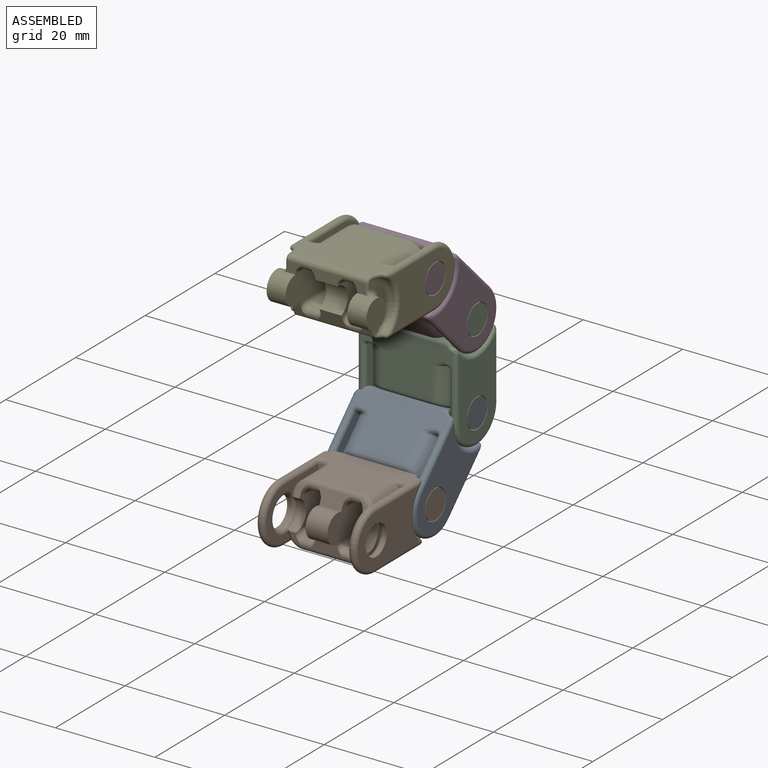
[diagram: assembled view]
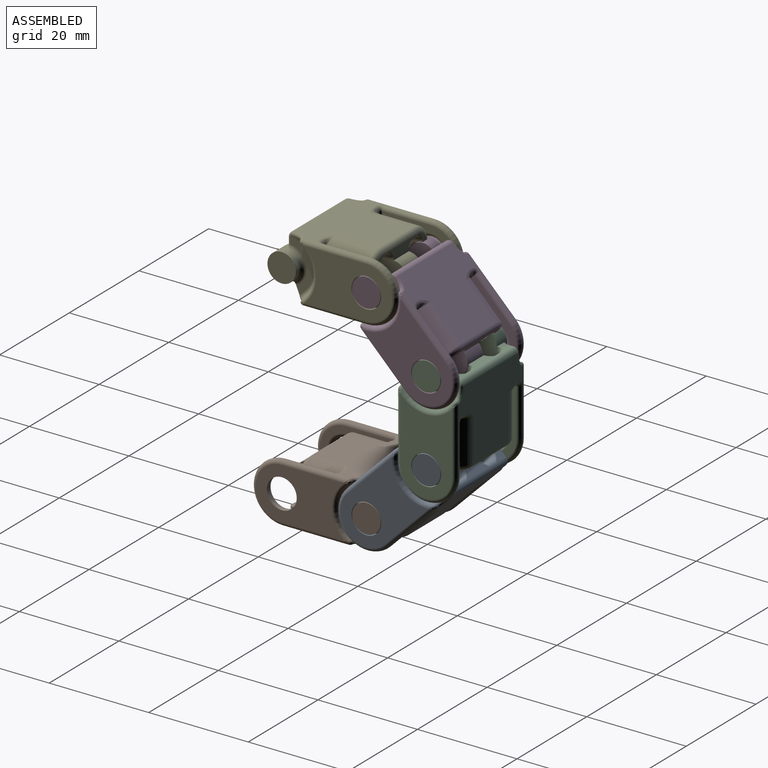
[diagram: assembled view, second angle]
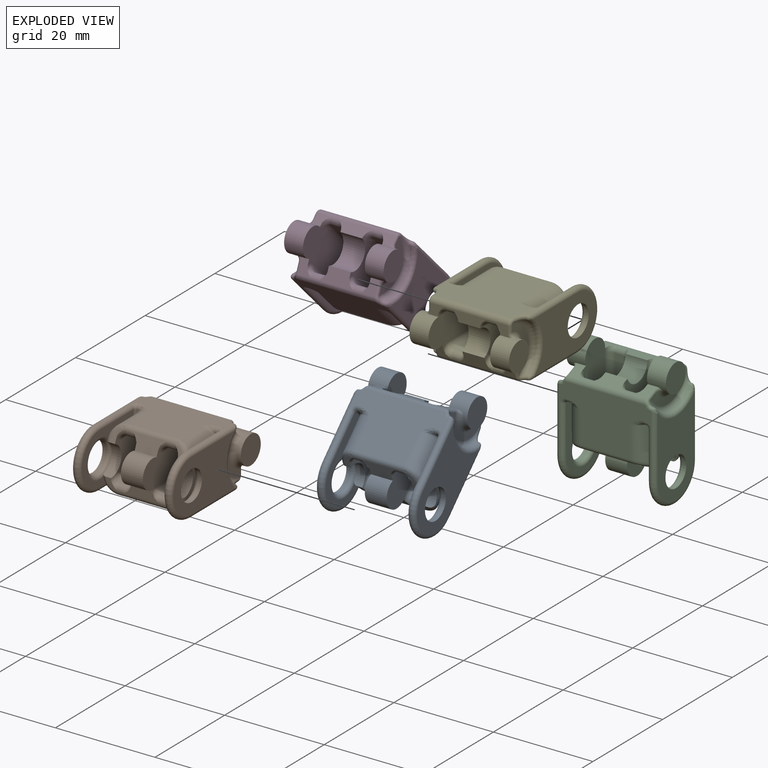
[diagram: exploded view]
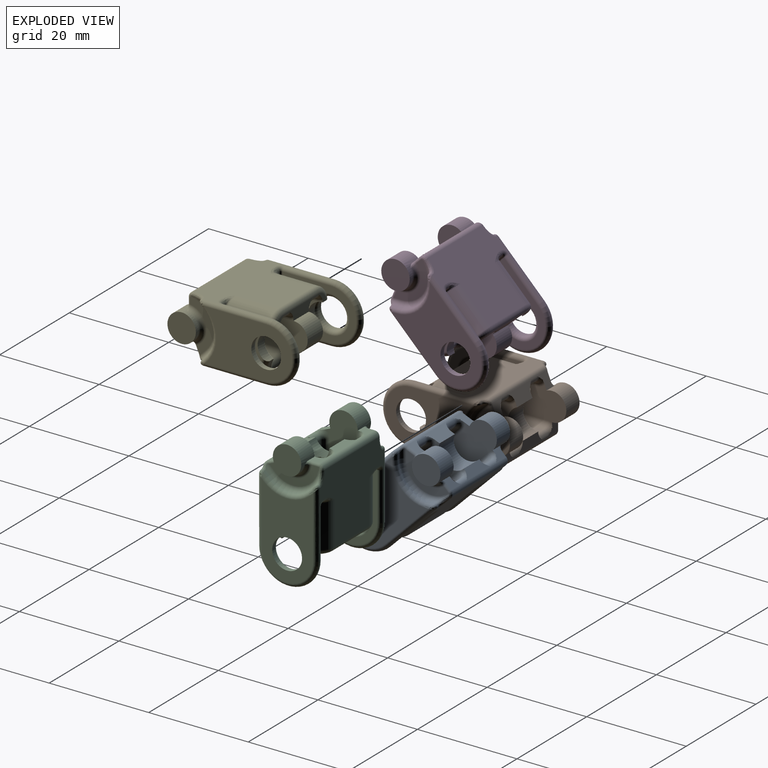
[diagram: exploded view, second angle]
ASSEMBLY  parts=5 mates=4
PART A: 156 faces, bbox 21.1x27x14.7 mm
  f0: plane 0.41x0.32mm, normal (0,-1,0), area 0.1mm2, adj f66,f67,f81
  f1: plane 7.26x3.08mm, normal (0,0.92,0.38), area 14mm2, adj f10,f27,f30,f47,f91,f119
  f2: plane 3.54x2.61mm, normal (0,1,0), area 4.2mm2, adj f12,f21,f29,f41,f56,f57
  f3: plane 2.19x2mm, normal (0,-1,0), area 1.8mm2, adj f5,f23,f37,f52
  f4: plane 3.08x2.66mm, normal (0,-0.92,0.38), area 2.5mm2, adj f12,f23,f42,f50,f51
  f5: plane 0.09x0.04mm, normal (-1,0,0), area 0mm2, adj f3,f23,f37
  f6: plane 0.09x0.04mm, normal (1,0,0), area 0mm2, adj f8,f27,f35
  f7: plane 7.26x2.6mm, normal (0,-1,0), area 11mm2, adj f10,f25,f31,f32,f91,f104
  f8: plane 6.8x2mm, normal (0,1,0), area 10.4mm2, adj f6,f27,f29,f35,f89,f107
  f9: plane 3.54x3.21mm, normal (0,0.92,0.38), area 5.5mm2, adj f12,f21,f30,f44,f61,f62,f63
  f10: plane 18.78x6.61mm, normal (1,0,0), area 95.3mm2, adj f1,f7,f25,f26,f27,f32,f33,f45
  f11: plane 8.52x5.6mm, normal (1,0,0), area 39.6mm2, adj f23,f48,f49,f51,f68
  f12: plane 18.78x6.61mm, normal (-1,0,0), area 95.3mm2, adj f2,f4,f9,f21,f23,f40,f41,f42
  f13: plane 14.8x10.4mm, normal (-1,0,0), area 96.9mm2, adj f67,f75,f77,f79,f83
  f14: plane 19.08x15.68mm, normal (0,0,-1), area 190.7mm2, adj f29,f31,f48,f60,f79,f80,f81,f82
  f15: plane 5.72x5.72mm, normal (1,0,0), area 25.7mm2, adj f21
  f16: plane 19.08x11.37mm, normal (0,0,1), area 134.3mm2, adj f28,f30,f49,f65,f70,f71,f74,f75
  f17: plane 10.69x1.6mm, normal (0,0,-1), area 17.1mm2, adj f28,f30,f43,f46
  f18: plane 17.6x10.4mm, normal (1,0,0), area 126.3mm2, adj f24,f73,f75,f76,f77,f79
  f19: plane 0.41x0.32mm, normal (0,-1,0), area 0.1mm2, adj f67,f69,f71
  f20: plane 15x1.6mm, normal (0,0,1), area 24mm2, adj f29,f31,f33,f34,f39,f40
  f21: cylinder r=2.86mm len=5.72mm, axis (1,0,0), area 45.4mm2, adj f2,f9,f12,f15,f55,f56,f61
  f22: plane 9.99x4.7mm, normal (1,0,0), area 16mm2, adj f53,f54,f55,f57,f58,f62
  f23: cylinder r=3mm len=5.77mm, axis (1,0,0), area 16.1mm2, adj f3,f4,f5,f11,f12,f38,f39,f48
  f24: cylinder r=3mm len=6mm, axis (1,0,0), area 15.1mm2, adj f18,f83
  f25: cylinder r=2.86mm len=5.72mm, axis (-1,0,0), area 44.5mm2, adj f7,f10,f26,f91
  f26: plane 7.26x3.2mm, normal (0,-0.92,0.38), area 14.6mm2, adj f10,f25,f28,f45,f91,f117
  f27: cylinder r=3mm len=5.77mm, axis (-1,0,0), area 36.3mm2, adj f1,f6,f8,f10,f34,f36,f89,f91
  f28: cylinder r=1mm len=10mm, axis (-1,0,0), area 18.1mm2, adj f16,f17,f26,f42,f45,f50,f96,f114
  f29: cylinder r=1mm len=15.63mm, axis (-1,0,0), area 29.5mm2, adj f2,f8,f14,f20,f35,f36,f41,f58
  f30: cylinder r=1mm len=16.18mm, axis (1,0,0), area 25mm2, adj f1,f9,f16,f17,f44,f47,f64,f90
  f31: cylinder r=1mm len=10mm, axis (-1,0,0), area 20.7mm2, adj f7,f14,f20,f32,f37,f38,f52,f99
  f32: torus R=2.2mm, axis (-1,0,0), area 2.5mm2, adj f7,f10,f31,f33
  f33: cylinder r=1.2mm len=14.92mm, axis (0,1,0), area 28.1mm2, adj f10,f20,f32,f34
  f34: bspline ~1.28x1.26mm, area 0.1mm2, adj f20,f27,f33,f36
  f35: torus R=2.2mm, axis (-1,0,0), area 1.1mm2, adj f6,f8,f29,f36
  f36: bspline ~1.41x1.35mm, area 1.1mm2, adj f27,f29,f34,f35
  f37: torus R=2.2mm, axis (-1,0,0), area 1.1mm2, adj f3,f5,f31,f38
  f38: bspline ~1.41x1.35mm, area 1.1mm2, adj f23,f31,f37,f39
  f39: bspline ~1.28x1.26mm, area 0.1mm2, adj f20,f23,f38,f40
  f40: cylinder r=1.2mm len=14.92mm, axis (0,-1,0), area 28.1mm2, adj f12,f20,f39,f41
  f41: torus R=2.2mm, axis (-1,0,0), area 2.5mm2, adj f2,f12,f29,f40
  f42: torus R=2.2mm, axis (-1,0,0), area 3.6mm2, adj f4,f12,f28,f43
  f43: cylinder r=1.2mm len=10.69mm, axis (0,1,0), area 20.2mm2, adj f12,f17,f42,f44
  f44: torus R=2.2mm, axis (-1,0,0), area 3.6mm2, adj f9,f12,f30,f43
  f45: torus R=2.2mm, axis (-1,0,0), area 3.6mm2, adj f10,f26,f28,f46
  f46: cylinder r=1.2mm len=10.69mm, axis (0,-1,0), area 20.2mm2, adj f10,f17,f45,f47
  f47: torus R=2.2mm, axis (-1,0,0), area 3.6mm2, adj f1,f10,f30,f46
  f48: cylinder r=3.2mm len=8.6mm, axis (0,1,0), area 43.2mm2, adj f11,f14,f23,f52,f66
  f49: cylinder r=3.2mm len=7.36mm, axis (0,-1,0), area 34.7mm2, adj f11,f16,f50,f69
  f50: bspline ~3.78x3.76mm, area 6mm2, adj f4,f28,f49,f51
  f51: cylinder r=1mm len=1.16mm, axis (0,0.38,0.92), area 0.8mm2, adj f4,f11,f23,f50
  f52: torus R=2.2mm, axis (0,-1,0), area 6.8mm2, adj f3,f23,f31,f48
  f53: torus R=5.2mm, axis (1,0,0), area 16.5mm2, adj f22,f54,f59,f60,f76
  f54: cylinder r=0.94mm len=1.91mm, axis (0,-0.71,-0.71), area 2.3mm2, adj f22,f53,f63,f64,f65,f73
  f55: torus R=3.8mm, axis (1,0,0), area 11.4mm2, adj f21,f22,f56,f61
  f56: bspline ~1.79x1.7mm, area 1mm2, adj f2,f21,f55,f57
  f57: cylinder r=0.5mm len=1.23mm, axis (0,0,1), area 1mm2, adj f2,f22,f56,f58
  f58: torus R=0.5mm, axis (1,0,0), area 0.2mm2, adj f22,f29,f57,f59
  f59: bspline ~1.21x0.9mm, area 0.8mm2, adj f29,f53,f58,f60
  f60: bspline ~3.69x1.74mm, area 3mm2, adj f14,f53,f59,f78
  f61: bspline ~1.7x1.65mm, area 1mm2, adj f9,f21,f55,f62
  f62: cylinder r=0.5mm len=1.72mm, axis (0,-0.38,0.92), area 1.3mm2, adj f9,f22,f61,f63
  f63: bspline ~0.57x0.53mm, area 0.3mm2, adj f9,f54,f62,f64
  f64: bspline ~1.18x1.16mm, area 0.7mm2, adj f30,f54,f63,f65
  f65: bspline ~1.11x0.99mm, area 1.1mm2, adj f16,f54,f64,f72
  f66: torus R=3.6mm, axis (0,-1,0), area 1.9mm2, adj f0,f48,f67,f68,f82
  f67: cylinder r=0.4mm len=10.4mm, axis (0,0,1), area 4mm2, adj f0,f13,f19,f66,f68,f69,f74,f80
  f68: cylinder r=0.4mm len=5.6mm, axis (0,0,1), area 1.6mm2, adj f11,f66,f67,f69
  f69: torus R=3.6mm, axis (0,-1,0), area 1.9mm2, adj f19,f49,f67,f68,f70
  f70: bspline ~3.09x1.2mm, area 1.2mm2, adj f16,f69,f71
  f71: cylinder r=0.8mm len=0.8mm, axis (-1,0,0), area 0.4mm2, adj f16,f19,f70,f74
  f72: bspline ~1.93x0.98mm, area 0.8mm2, adj f65,f73,f75
  f73: cylinder r=0.8mm len=1.37mm, axis (0,-0.71,-0.71), area 1mm2, adj f18,f54,f72,f76
  f74: torus R=1.2mm, axis (0,0,1), area 1.4mm2, adj f16,f67,f71,f75
  f75: cylinder r=0.8mm len=13.11mm, axis (0,-1,0), area 28.1mm2, adj f13,f16,f18,f72,f74,f77
  f76: torus R=6.94mm, axis (-1,0,0), area 13.7mm2, adj f18,f53,f73,f78
  f77: torus R=5.2mm, axis (-1,0,0), area 45.1mm2, adj f13,f18,f75,f79
  f78: bspline ~2.51x1.15mm, area 1mm2, adj f60,f76,f79
  f79: cylinder r=0.8mm len=13.28mm, axis (0,1,0), area 28.2mm2, adj f13,f14,f18,f77,f78,f80
  f80: torus R=1.2mm, axis (0,0,1), area 1.4mm2, adj f14,f67,f79,f81
  f81: cylinder r=0.8mm len=0.8mm, axis (1,0,0), area 0.4mm2, adj f0,f14,f80,f82
  f82: bspline ~3.09x1.2mm, area 1.1mm2, adj f14,f66,f81
  f83: torus R=3.8mm, axis (-1,0,0), area 26mm2, adj f13,f24
  f84: plane 0.41x0.32mm, normal (0,-1,0), area 0.1mm2, adj f138,f139,f153
  f85: plane 3.54x2.61mm, normal (0,1,0), area 4.2mm2, adj f29,f93,f100,f113,f128,f129
  f86: plane 2.19x2mm, normal (0,-1,0), area 1.8mm2, adj f88,f102,f109,f124
  f87: plane 3.08x2.66mm, normal (0,-0.92,0.38), area 2.5mm2, adj f93,f102,f114,f122,f123
  f88: plane 0.09x0.04mm, normal (1,0,0), area 0mm2, adj f86,f102,f109
  f89: plane 0.09x0.04mm, normal (-1,0,0), area 0mm2, adj f8,f27,f107
  f90: plane 3.54x3.21mm, normal (0,0.92,0.38), area 5.5mm2, adj f30,f93,f100,f116,f133,f134,f135
  f91: plane 18.78x6.61mm, normal (-1,0,0), area 95.3mm2, adj f1,f7,f25,f26,f27,f104,f105,f117
  f92: plane 8.52x5.6mm, normal (-1,0,0), area 39.6mm2, adj f102,f120,f121,f123,f140
  f93: plane 18.78x6.61mm, normal (1,0,0), area 95.3mm2, adj f85,f87,f90,f100,f102,f112,f113,f114
  f94: plane 14.8x10.4mm, normal (1,0,0), area 96.9mm2, adj f139,f147,f149,f151,f155
  f95: plane 5.72x5.72mm, normal (-1,0,0), area 25.7mm2, adj f100
  f96: plane 10.69x1.6mm, normal (0,0,-1), area 17.1mm2, adj f28,f30,f115,f118
  f97: plane 17.6x10.4mm, normal (-1,0,0), area 126.3mm2, adj f103,f145,f147,f148,f149,f151
  f98: plane 0.41x0.32mm, normal (0,-1,0), area 0.1mm2, adj f139,f141,f143
  f99: plane 15x1.6mm, normal (0,0,1), area 24mm2, adj f29,f31,f105,f106,f111,f112
  f100: cylinder r=2.86mm len=5.72mm, axis (-1,0,0), area 45.4mm2, adj f85,f90,f93,f95,f127,f128,f133
  f101: plane 9.99x4.7mm, normal (-1,0,0), area 16mm2, adj f125,f126,f127,f129,f130,f134
  f102: cylinder r=3mm len=5.77mm, axis (-1,0,0), area 16.1mm2, adj f86,f87,f88,f92,f93,f110,f111,f120
  f103: cylinder r=3mm len=6mm, axis (-1,0,0), area 15.1mm2, adj f97,f155
  f104: torus R=2.2mm, axis (1,0,0), area 2.5mm2, adj f7,f31,f91,f105
  f105: cylinder r=1.2mm len=14.92mm, axis (0,1,0), area 28.1mm2, adj f91,f99,f104,f106
  f106: bspline ~1.28x1.26mm, area 0.1mm2, adj f27,f99,f105,f108
  f107: torus R=2.2mm, axis (1,0,0), area 1.1mm2, adj f8,f29,f89,f108
  f108: bspline ~1.41x1.35mm, area 1.1mm2, adj f27,f29,f106,f107
  f109: torus R=2.2mm, axis (1,0,0), area 1.1mm2, adj f31,f86,f88,f110
  f110: bspline ~1.41x1.35mm, area 1.1mm2, adj f31,f102,f109,f111
  f111: bspline ~1.28x1.26mm, area 0.1mm2, adj f99,f102,f110,f112
  f112: cylinder r=1.2mm len=14.92mm, axis (0,-1,0), area 28.1mm2, adj f93,f99,f111,f113
  f113: torus R=2.2mm, axis (1,0,0), area 2.5mm2, adj f29,f85,f93,f112
  f114: torus R=2.2mm, axis (1,0,0), area 3.6mm2, adj f28,f87,f93,f115
  f115: cylinder r=1.2mm len=10.69mm, axis (0,1,0), area 20.2mm2, adj f93,f96,f114,f116
  f116: torus R=2.2mm, axis (1,0,0), area 3.6mm2, adj f30,f90,f93,f115
  f117: torus R=2.2mm, axis (1,0,0), area 3.6mm2, adj f26,f28,f91,f118
  f118: cylinder r=1.2mm len=10.69mm, axis (0,-1,0), area 20.2mm2, adj f91,f96,f117,f119
  f119: torus R=2.2mm, axis (1,0,0), area 3.6mm2, adj f1,f30,f91,f118
  f120: cylinder r=3.2mm len=8.6mm, axis (0,1,0), area 43.2mm2, adj f14,f92,f102,f124,f138
  f121: cylinder r=3.2mm len=7.36mm, axis (0,-1,0), area 34.7mm2, adj f16,f92,f122,f141
  f122: bspline ~3.78x3.76mm, area 6mm2, adj f28,f87,f121,f123
  f123: cylinder r=1mm len=1.16mm, axis (0,0.38,0.92), area 0.8mm2, adj f87,f92,f102,f122
  f124: torus R=2.2mm, axis (0,-1,0), area 6.8mm2, adj f31,f86,f102,f120
  f125: torus R=5.2mm, axis (-1,0,0), area 16.5mm2, adj f101,f126,f131,f132,f148
  f126: cylinder r=0.94mm len=1.91mm, axis (0,-0.71,-0.71), area 2.3mm2, adj f101,f125,f135,f136,f137,f145
  f127: torus R=3.8mm, axis (-1,0,0), area 11.4mm2, adj f100,f101,f128,f133
  f128: bspline ~1.79x1.7mm, area 1mm2, adj f85,f100,f127,f129
  f129: cylinder r=0.5mm len=1.23mm, axis (0,0,1), area 1mm2, adj f85,f101,f128,f130
  f130: torus R=0.5mm, axis (-1,0,0), area 0.2mm2, adj f29,f101,f129,f131
  f131: bspline ~1.21x0.9mm, area 0.8mm2, adj f29,f125,f130,f132
  f132: bspline ~3.69x1.74mm, area 3mm2, adj f14,f125,f131,f150
  f133: bspline ~1.7x1.65mm, area 1mm2, adj f90,f100,f127,f134
  f134: cylinder r=0.5mm len=1.72mm, axis (0,-0.38,0.92), area 1.3mm2, adj f90,f101,f133,f135
  f135: bspline ~0.85x0.59mm, area 0.3mm2, adj f90,f126,f134,f136
  f136: bspline ~1.18x1.16mm, area 0.7mm2, adj f30,f126,f135,f137
  f137: bspline ~1.11x0.99mm, area 1.1mm2, adj f16,f126,f136,f144
  f138: torus R=3.6mm, axis (0,-1,0), area 1.9mm2, adj f84,f120,f139,f140,f154
  f139: cylinder r=0.4mm len=10.4mm, axis (0,0,1), area 4mm2, adj f84,f94,f98,f138,f140,f141,f146,f152
  f140: cylinder r=0.4mm len=5.6mm, axis (0,0,1), area 1.6mm2, adj f92,f138,f139,f141
  f141: torus R=3.6mm, axis (0,-1,0), area 1.9mm2, adj f98,f121,f139,f140,f142
  f142: bspline ~3.09x1.2mm, area 1.1mm2, adj f16,f141,f143
  f143: cylinder r=0.8mm len=0.8mm, axis (1,0,0), area 0.4mm2, adj f16,f98,f142,f146
  f144: bspline ~1.93x0.98mm, area 0.8mm2, adj f137,f145,f147
  f145: cylinder r=0.8mm len=1.37mm, axis (0,-0.71,-0.71), area 1mm2, adj f97,f126,f144,f148
  f146: torus R=1.2mm, axis (0,0,1), area 1.4mm2, adj f16,f139,f143,f147
  f147: cylinder r=0.8mm len=13.11mm, axis (0,-1,0), area 28.1mm2, adj f16,f94,f97,f144,f146,f149
  f148: torus R=6.94mm, axis (1,0,0), area 13.7mm2, adj f97,f125,f145,f150
  f149: torus R=5.2mm, axis (1,0,0), area 45.1mm2, adj f94,f97,f147,f151
  f150: bspline ~2.51x1.15mm, area 1mm2, adj f132,f148,f151
  f151: cylinder r=0.8mm len=13.28mm, axis (0,1,0), area 28.2mm2, adj f14,f94,f97,f149,f150,f152
  f152: torus R=1.2mm, axis (0,0,1), area 1.4mm2, adj f14,f139,f151,f153
  f153: cylinder r=0.8mm len=0.8mm, axis (-1,0,0), area 0.4mm2, adj f14,f84,f152,f154
  f154: bspline ~3.09x1.2mm, area 1.1mm2, adj f14,f138,f153
  f155: torus R=3.8mm, axis (1,0,0), area 26mm2, adj f94,f103
PART B: same geometry as A
PART C: same geometry as A
PART D: same geometry as A
PART E: same geometry as A
PLACE A rot(axis=(1,0,0),45deg) t=(0.02,26.06,-36.84)mm
PLACE B rot(axis=(1,0,0),0deg) t=(0.02,7.75,-45.68)mm fixed
PLACE C rot(axis=(1,0,0),90deg) t=(0.02,32.76,-17.64)mm
PLACE D rot(axis=(1,0,0),135deg) t=(0.02,23.91,0.66)mm
PLACE E rot(axis=(-1,0,0),180deg) t=(0.02,4.72,7.36)mm
MATE revolute D.f53 <-> E.f83  axis (-1,0,0) through (-9.98,14.72,1.36)mm
MATE revolute A.f53 <-> C.f83  axis (-1,0,0) through (-9.98,26.76,-27.65)mm
MATE revolute C.f53 <-> D.f83  axis (-1,0,0) through (-9.98,26.75,-10.65)mm
MATE revolute B.f53 <-> A.f83  axis (-1,0,0) through (-9.98,14.75,-39.68)mm
